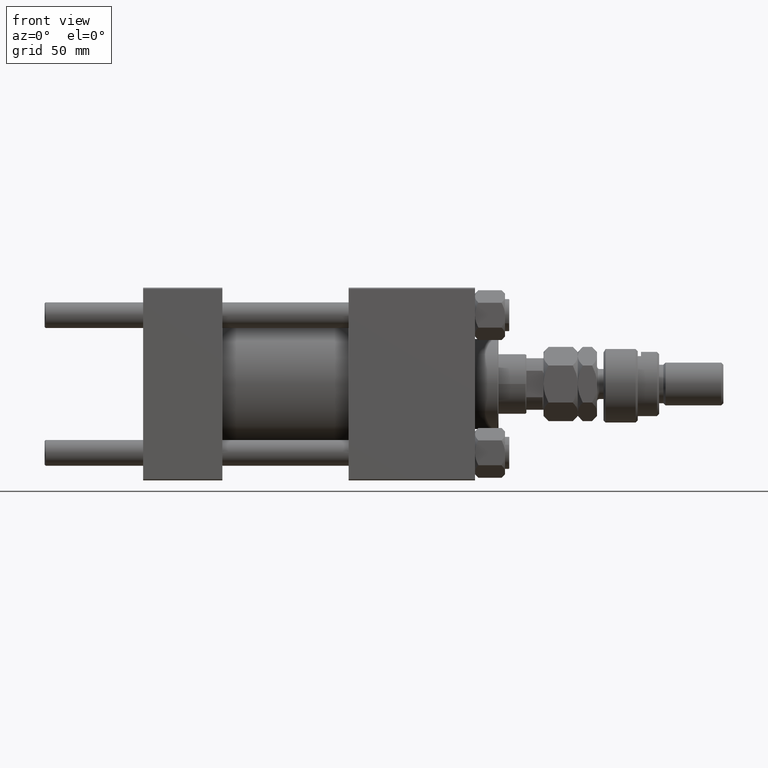
[diagram: clean part render]
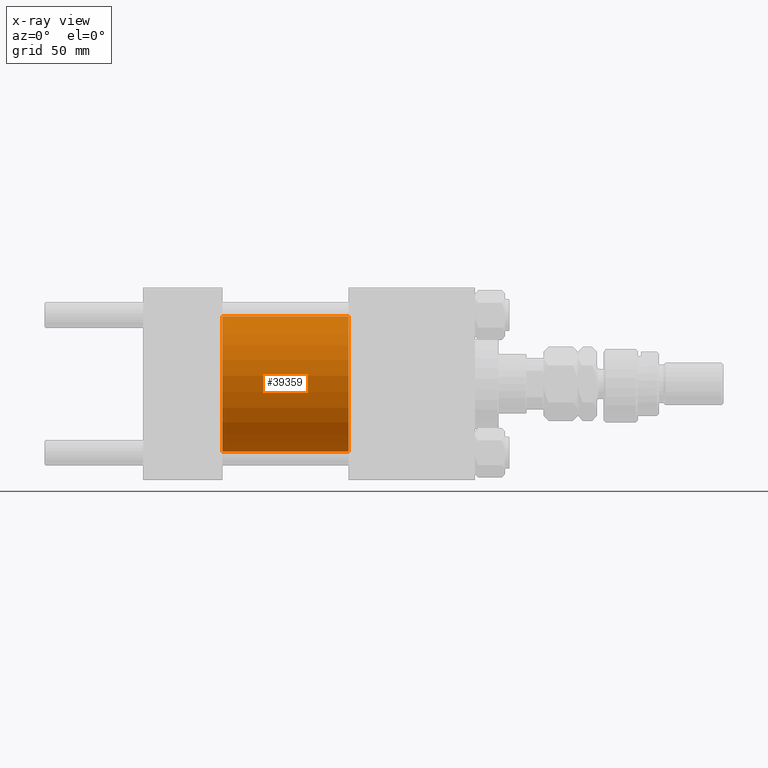
[diagram: x-ray — body ghosted, one internal face saturated and labeled with its STEP entity id]
A machine part, front view, then the same camera in x-ray: the body is ghosted and one INTERNAL B-rep face — a face not visible from any outside direction — is saturated and labeled: STEP entity #39359.
In plain terms, the highlighted cylindrical surface (partial cylindrical patch) has radius 31.5 mm, axis along (-1, -0, -0).
Its self-contained STEP definition (entity closure, byte-faithful):
#1917 = CARTESIAN_POINT ( 'NONE',  ( 96.00000000000000000, 0.000000000000000000, 0.000000000000000000 ) ) ;
#3690 = VECTOR ( 'NONE', #48269, 1000.000000000000000 ) ;
#4859 = DIRECTION ( 'NONE',  ( 0.000000000000000000, 0.000000000000000000, -1.000000000000000000 ) ) ;
#6465 = ORIENTED_EDGE ( 'NONE', *, *, #26890, .F. ) ;
#8298 = CARTESIAN_POINT ( 'NONE',  ( 96.00000000000000000, 3.857637417314162689E-15, -31.50000000000000000 ) ) ;
#9462 = DIRECTION ( 'NONE',  ( 1.000000000000000000, 0.000000000000000000, 0.000000000000000000 ) ) ;
#9918 = LINE ( 'NONE', #42134, #50743 ) ;
#13220 = CARTESIAN_POINT ( 'NONE',  ( 96.00000000000000000, 3.857637417314162689E-15, -31.50000000000000000 ) ) ;
#15496 = ORIENTED_EDGE ( 'NONE', *, *, #49656, .T. ) ;
#17960 = CARTESIAN_POINT ( 'NONE',  ( 37.00000000000000000, 0.000000000000000000, 0.000000000000000000 ) ) ;
#18276 = VERTEX_POINT ( 'NONE', #47214 ) ;
#19890 = AXIS2_PLACEMENT_3D ( 'NONE', #1917, #30107, #4859 ) ;
#21468 = EDGE_CURVE ( 'NONE', #25312, #18276, #36222, .T. ) ;
#21691 = DIRECTION ( 'NONE',  ( 0.000000000000000000, 0.000000000000000000, -1.000000000000000000 ) ) ;
#23472 = CARTESIAN_POINT ( 'NONE',  ( 96.00000000000000000, 0.000000000000000000, 31.50000000000000000 ) ) ;
#23769 = CYLINDRICAL_SURFACE ( 'NONE', #36590, 31.50000000000000000 ) ;
#24533 = CARTESIAN_POINT ( 'NONE',  ( 96.00000000000000000, 0.000000000000000000, 0.000000000000000000 ) ) ;
#25312 = VERTEX_POINT ( 'NONE', #33181 ) ;
#26890 = EDGE_CURVE ( 'NONE', #27119, #25312, #9918, .T. ) ;
#27119 = VERTEX_POINT ( 'NONE', #23472 ) ;
#27284 = ORIENTED_EDGE ( 'NONE', *, *, #21468, .F. ) ;
#28022 = DIRECTION ( 'NONE',  ( 0.000000000000000000, 0.000000000000000000, 1.000000000000000000 ) ) ;
#30107 = DIRECTION ( 'NONE',  ( 1.000000000000000000, 0.000000000000000000, 0.000000000000000000 ) ) ;
#31763 = FACE_OUTER_BOUND ( 'NONE', #34968, .T. ) ;
#32248 = LINE ( 'NONE', #8298, #3690 ) ;
#33181 = CARTESIAN_POINT ( 'NONE',  ( 37.00000000000000000, 0.000000000000000000, 31.50000000000000000 ) ) ;
#33672 = AXIS2_PLACEMENT_3D ( 'NONE', #17960, #9462, #21691 ) ;
#34968 = EDGE_LOOP ( 'NONE', ( #35787, #15496, #27284, #6465 ) ) ;
#35787 = ORIENTED_EDGE ( 'NONE', *, *, #51593, .T. ) ;
#36222 = CIRCLE ( 'NONE', #33672, 31.50000000000000000 ) ;
#36590 = AXIS2_PLACEMENT_3D ( 'NONE', #24533, #36786, #28022 ) ;
#36786 = DIRECTION ( 'NONE',  ( -1.000000000000000000, -0.000000000000000000, -0.000000000000000000 ) ) ;
#38920 = DIRECTION ( 'NONE',  ( -1.000000000000000000, -0.000000000000000000, -0.000000000000000000 ) ) ;
#39359 = ADVANCED_FACE ( 'NONE', ( #31763 ), #23769, .F. ) ;
#42134 = CARTESIAN_POINT ( 'NONE',  ( 96.00000000000000000, 0.000000000000000000, 31.50000000000000000 ) ) ;
#42796 = VERTEX_POINT ( 'NONE', #13220 ) ;
#42885 = CIRCLE ( 'NONE', #19890, 31.50000000000000000 ) ;
#47214 = CARTESIAN_POINT ( 'NONE',  ( 37.00000000000000000, 3.857637417314162689E-15, -31.50000000000000000 ) ) ;
#48269 = DIRECTION ( 'NONE',  ( -1.000000000000000000, -0.000000000000000000, -0.000000000000000000 ) ) ;
#49656 = EDGE_CURVE ( 'NONE', #42796, #18276, #32248, .T. ) ;
#50743 = VECTOR ( 'NONE', #38920, 1000.000000000000000 ) ;
#51593 = EDGE_CURVE ( 'NONE', #27119, #42796, #42885, .T. ) ;